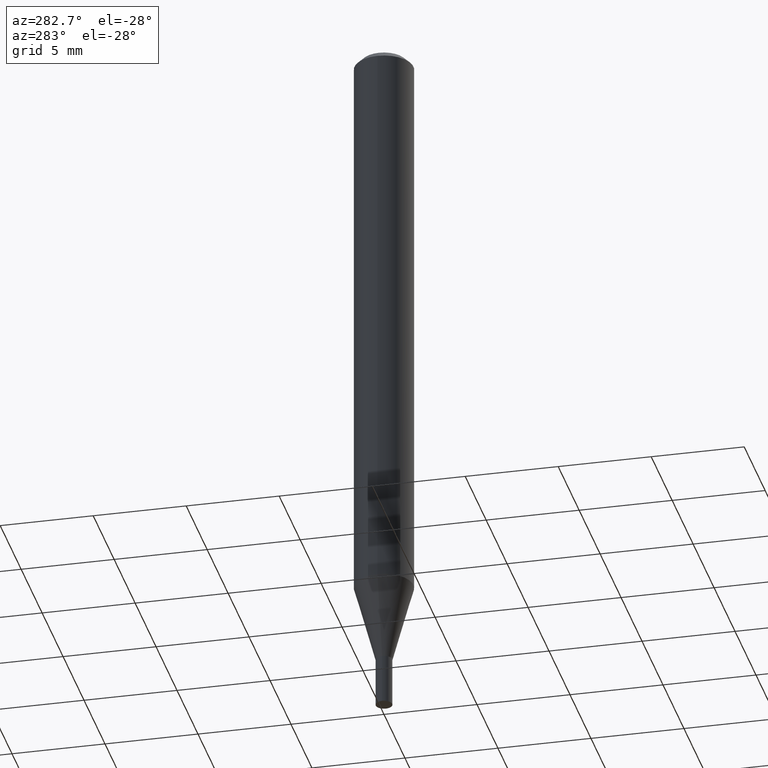
[diagram: clean part render]
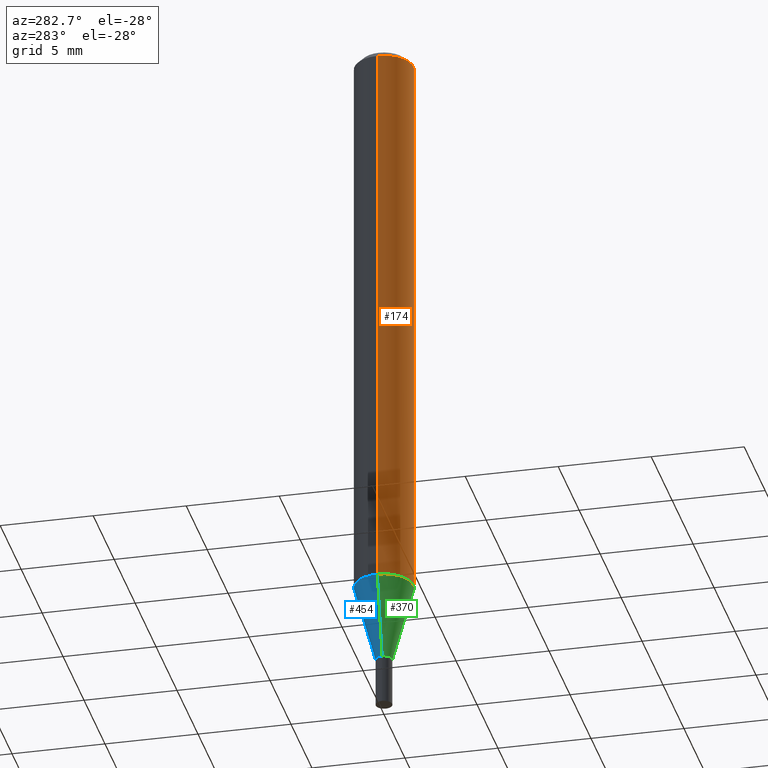
[diagram: same view with three faces highlighted in distinct colors, each labeled with its STEP entity id]
A machine part, auxiliary view with three faces highlighted in distinct colors.
Their STEP definitions:

[orange] entity #174 — the highlighted cylindrical surface (edge-blend (fillet) strip) has radius 1.5875 mm, axis along (-0, 0, 1).
#1 = VECTOR ( 'NONE', #131, 39.37007874015748143 ) ;
#6 = EDGE_CURVE ( 'NONE', #242, #431, #196, .T. ) ;
#8 = VECTOR ( 'NONE', #105, 39.37007874015748143 ) ;
#64 = CARTESIAN_POINT ( 'NONE',  ( 3.000731362142915866E-29, -4.284249108925330363E-15, -1.227057713659399862 ) ) ;
#66 = CARTESIAN_POINT ( 'NONE',  ( 0.06250000000000000000, -4.364351673553916694E-16, 3.047610484872459871E-30 ) ) ;
#71 = DIRECTION ( 'NONE',  ( -2.445468806185136597E-29, 3.491481338843145583E-15, 1.000000000000000000 ) ) ;
#89 = ORIENTED_EDGE ( 'NONE', *, *, #327, .F. ) ;
#101 = CARTESIAN_POINT ( 'NONE',  ( 0.000000000000000000, 0.000000000000000000, 0.000000000000000000 ) ) ;
#105 = DIRECTION ( 'NONE',  ( -2.445468806185136877E-29, 3.491481338843145188E-15, 1.000000000000000000 ) ) ;
#130 = DIRECTION ( 'NONE',  ( 1.000000000000000000, -6.982962677686262766E-15, 0.000000000000000000 ) ) ;
#131 = DIRECTION ( 'NONE',  ( -2.445468806185136877E-29, 3.491481338843145188E-15, 1.000000000000000000 ) ) ;
#132 = DIRECTION ( 'NONE',  ( 1.000000000000000000, -6.982962677686266711E-15, 0.000000000000000000 ) ) ;
#137 = ORIENTED_EDGE ( 'NONE', *, *, #426, .F. ) ;
#157 = EDGE_CURVE ( 'NONE', #383, #242, #450, .T. ) ;
#164 = DIRECTION ( 'NONE',  ( -2.445468806185136597E-29, 3.491481338843145583E-15, 1.000000000000000000 ) ) ;
#167 = CARTESIAN_POINT ( 'NONE',  ( 0.06250000000000000000, -4.888073874380388472E-16, -0.01499999999999999944 ) ) ;
#173 = ORIENTED_EDGE ( 'NONE', *, *, #6, .T. ) ;
#174 = ADVANCED_FACE ( 'NONE', ( #429 ), #357, .T. ) ;
#196 = LINE ( 'NONE', #66, #1 ) ;
#210 = DIRECTION ( 'NONE',  ( 1.000000000000000000, -6.982962677686266711E-15, 4.876176775795935793E-29 ) ) ;
#221 = AXIS2_PLACEMENT_3D ( 'NONE', #240, #422, #132 ) ;
#226 = CARTESIAN_POINT ( 'NONE',  ( -0.06250000000000000000, 4.440892098500626162E-16, -3.074334431409316114E-30 ) ) ;
#240 = CARTESIAN_POINT ( 'NONE',  ( 3.668203209277705088E-31, -5.237222008264718399E-17, -0.01499999999999999944 ) ) ;
#242 = VERTEX_POINT ( 'NONE', #311 ) ;
#264 = CARTESIAN_POINT ( 'NONE',  ( -0.06250000000000000000, -1.724221454653926105E-15, -0.01499999999999999944 ) ) ;
#306 = AXIS2_PLACEMENT_3D ( 'NONE', #64, #164, #130 ) ;
#311 = CARTESIAN_POINT ( 'NONE',  ( 0.06249999999999999306, -4.720684276280722821E-15, -1.227057713659399862 ) ) ;
#313 = VERTEX_POINT ( 'NONE', #264 ) ;
#327 = EDGE_CURVE ( 'NONE', #383, #313, #408, .T. ) ;
#341 = EDGE_LOOP ( 'NONE', ( #89, #392, #173, #137 ) ) ;
#357 = CYLINDRICAL_SURFACE ( 'NONE', #358, 0.06250000000000000000 ) ;
#358 = AXIS2_PLACEMENT_3D ( 'NONE', #101, #71, #210 ) ;
#363 = CARTESIAN_POINT ( 'NONE',  ( -0.06249999999999999306, -3.840159899075268536E-15, -1.227057713659399862 ) ) ;
#383 = VERTEX_POINT ( 'NONE', #363 ) ;
#392 = ORIENTED_EDGE ( 'NONE', *, *, #157, .T. ) ;
#408 = LINE ( 'NONE', #226, #8 ) ;
#422 = DIRECTION ( 'NONE',  ( -2.445468806185136597E-29, 3.491481338843145583E-15, 1.000000000000000000 ) ) ;
#426 = EDGE_CURVE ( 'NONE', #313, #431, #446, .T. ) ;
#429 = FACE_OUTER_BOUND ( 'NONE', #341, .T. ) ;
#431 = VERTEX_POINT ( 'NONE', #167 ) ;
#446 = CIRCLE ( 'NONE', #221, 0.06250000000000000000 ) ;
#450 = CIRCLE ( 'NONE', #306, 0.06250000000000000000 ) ;

[blue] entity #454 — the highlighted conical surface has half-angle 15 deg.
#40 = AXIS2_PLACEMENT_3D ( 'NONE', #440, #342, #82 ) ;
#42 = VECTOR ( 'NONE', #285, 39.37007874015748143 ) ;
#43 = VERTEX_POINT ( 'NONE', #179 ) ;
#62 = ORIENTED_EDGE ( 'NONE', *, *, #280, .F. ) ;
#69 = AXIS2_PLACEMENT_3D ( 'NONE', #144, #288, #78 ) ;
#78 = DIRECTION ( 'NONE',  ( 1.000000000000000000, -6.982962677686276177E-15, 0.000000000000000000 ) ) ;
#82 = DIRECTION ( 'NONE',  ( 1.000000000000000000, -6.982962677686262766E-15, 0.000000000000000000 ) ) ;
#115 = CIRCLE ( 'NONE', #69, 0.01749999999999965472 ) ;
#124 = FACE_OUTER_BOUND ( 'NONE', #456, .T. ) ;
#144 = CARTESIAN_POINT ( 'NONE',  ( 3.411428984628265351E-29, -4.870616467686188228E-15, -1.395000000000000018 ) ) ;
#147 = LINE ( 'NONE', #152, #42 ) ;
#152 = CARTESIAN_POINT ( 'NONE',  ( -0.01749999999999965472, -4.746271488928174135E-15, -1.395000000000000018 ) ) ;
#179 = CARTESIAN_POINT ( 'NONE',  ( -0.01749999999999965472, -4.293215694001720941E-15, -1.395000000000000018 ) ) ;
#185 = ORIENTED_EDGE ( 'NONE', *, *, #366, .T. ) ;
#192 = CARTESIAN_POINT ( 'NONE',  ( 0.01749999999999965472, -4.992818314545695844E-15, -1.395000000000000018 ) ) ;
#220 = ORIENTED_EDGE ( 'NONE', *, *, #352, .F. ) ;
#229 = CARTESIAN_POINT ( 'NONE',  ( 0.01749999999999965472, -4.992818314545695844E-15, -1.395000000000000018 ) ) ;
#234 = DIRECTION ( 'NONE',  ( 1.000000000000000000, -6.982962677686276177E-15, 0.000000000000000000 ) ) ;
#242 = VERTEX_POINT ( 'NONE', #311 ) ;
#280 = EDGE_CURVE ( 'NONE', #324, #242, #447, .T. ) ;
#281 = VECTOR ( 'NONE', #336, 39.37007874015748143 ) ;
#285 = DIRECTION ( 'NONE',  ( -0.2588190451025215166, 5.211531920934551042E-15, 0.9659258262890679791 ) ) ;
#288 = DIRECTION ( 'NONE',  ( -2.445468806185136597E-29, 3.491481338843145583E-15, 1.000000000000000000 ) ) ;
#296 = EDGE_CURVE ( 'NONE', #43, #383, #147, .T. ) ;
#309 = DIRECTION ( 'NONE',  ( -2.445468806185136597E-29, 3.491481338843145583E-15, 1.000000000000000000 ) ) ;
#311 = CARTESIAN_POINT ( 'NONE',  ( 0.06249999999999999306, -4.720684276280722821E-15, -1.227057713659399862 ) ) ;
#315 = CARTESIAN_POINT ( 'NONE',  ( 3.411428984628265351E-29, -4.870616467686188228E-15, -1.395000000000000018 ) ) ;
#318 = ORIENTED_EDGE ( 'NONE', *, *, #296, .T. ) ;
#324 = VERTEX_POINT ( 'NONE', #192 ) ;
#336 = DIRECTION ( 'NONE',  ( 0.2588190451025215166, 1.565188264969620784E-15, 0.9659258262890679791 ) ) ;
#342 = DIRECTION ( 'NONE',  ( -2.445468806185136597E-29, 3.491481338843145583E-15, 1.000000000000000000 ) ) ;
#348 = AXIS2_PLACEMENT_3D ( 'NONE', #315, #309, #234 ) ;
#352 = EDGE_CURVE ( 'NONE', #242, #383, #365, .T. ) ;
#363 = CARTESIAN_POINT ( 'NONE',  ( -0.06249999999999999306, -3.840159899075268536E-15, -1.227057713659399862 ) ) ;
#365 = CIRCLE ( 'NONE', #40, 0.06250000000000000000 ) ;
#366 = EDGE_CURVE ( 'NONE', #324, #43, #115, .T. ) ;
#383 = VERTEX_POINT ( 'NONE', #363 ) ;
#406 = CONICAL_SURFACE ( 'NONE', #348, 0.01749999999999965472, 0.2617993877991502405 ) ;
#440 = CARTESIAN_POINT ( 'NONE',  ( 3.000731362142915866E-29, -4.284249108925330363E-15, -1.227057713659399862 ) ) ;
#447 = LINE ( 'NONE', #229, #281 ) ;
#454 = ADVANCED_FACE ( 'NONE', ( #124 ), #406, .T. ) ;
#456 = EDGE_LOOP ( 'NONE', ( #185, #318, #220, #62 ) ) ;

[green] entity #370 — the highlighted conical surface has half-angle 15 deg.
#36 = CONICAL_SURFACE ( 'NONE', #384, 0.01749999999999965472, 0.2617993877991502405 ) ;
#42 = VECTOR ( 'NONE', #285, 39.37007874015748143 ) ;
#43 = VERTEX_POINT ( 'NONE', #179 ) ;
#49 = DIRECTION ( 'NONE',  ( -2.445468806185136597E-29, 3.491481338843145583E-15, 1.000000000000000000 ) ) ;
#64 = CARTESIAN_POINT ( 'NONE',  ( 3.000731362142915866E-29, -4.284249108925330363E-15, -1.227057713659399862 ) ) ;
#65 = ORIENTED_EDGE ( 'NONE', *, *, #296, .F. ) ;
#108 = CARTESIAN_POINT ( 'NONE',  ( 3.411428984628265351E-29, -4.870616467686188228E-15, -1.395000000000000018 ) ) ;
#109 = ORIENTED_EDGE ( 'NONE', *, *, #245, .T. ) ;
#130 = DIRECTION ( 'NONE',  ( 1.000000000000000000, -6.982962677686262766E-15, 0.000000000000000000 ) ) ;
#147 = LINE ( 'NONE', #152, #42 ) ;
#152 = CARTESIAN_POINT ( 'NONE',  ( -0.01749999999999965472, -4.746271488928174135E-15, -1.395000000000000018 ) ) ;
#157 = EDGE_CURVE ( 'NONE', #383, #242, #450, .T. ) ;
#164 = DIRECTION ( 'NONE',  ( -2.445468806185136597E-29, 3.491481338843145583E-15, 1.000000000000000000 ) ) ;
#179 = CARTESIAN_POINT ( 'NONE',  ( -0.01749999999999965472, -4.293215694001720941E-15, -1.395000000000000018 ) ) ;
#192 = CARTESIAN_POINT ( 'NONE',  ( 0.01749999999999965472, -4.992818314545695844E-15, -1.395000000000000018 ) ) ;
#229 = CARTESIAN_POINT ( 'NONE',  ( 0.01749999999999965472, -4.992818314545695844E-15, -1.395000000000000018 ) ) ;
#232 = CIRCLE ( 'NONE', #278, 0.01749999999999965472 ) ;
#242 = VERTEX_POINT ( 'NONE', #311 ) ;
#245 = EDGE_CURVE ( 'NONE', #43, #324, #232, .T. ) ;
#256 = DIRECTION ( 'NONE',  ( -2.445468806185136597E-29, 3.491481338843145583E-15, 1.000000000000000000 ) ) ;
#257 = EDGE_LOOP ( 'NONE', ( #65, #109, #349, #435 ) ) ;
#278 = AXIS2_PLACEMENT_3D ( 'NONE', #443, #49, #466 ) ;
#280 = EDGE_CURVE ( 'NONE', #324, #242, #447, .T. ) ;
#281 = VECTOR ( 'NONE', #336, 39.37007874015748143 ) ;
#285 = DIRECTION ( 'NONE',  ( -0.2588190451025215166, 5.211531920934551042E-15, 0.9659258262890679791 ) ) ;
#296 = EDGE_CURVE ( 'NONE', #43, #383, #147, .T. ) ;
#306 = AXIS2_PLACEMENT_3D ( 'NONE', #64, #164, #130 ) ;
#311 = CARTESIAN_POINT ( 'NONE',  ( 0.06249999999999999306, -4.720684276280722821E-15, -1.227057713659399862 ) ) ;
#324 = VERTEX_POINT ( 'NONE', #192 ) ;
#336 = DIRECTION ( 'NONE',  ( 0.2588190451025215166, 1.565188264969620784E-15, 0.9659258262890679791 ) ) ;
#349 = ORIENTED_EDGE ( 'NONE', *, *, #280, .T. ) ;
#363 = CARTESIAN_POINT ( 'NONE',  ( -0.06249999999999999306, -3.840159899075268536E-15, -1.227057713659399862 ) ) ;
#370 = ADVANCED_FACE ( 'NONE', ( #436 ), #36, .T. ) ;
#372 = DIRECTION ( 'NONE',  ( 1.000000000000000000, -6.982962677686276177E-15, 0.000000000000000000 ) ) ;
#383 = VERTEX_POINT ( 'NONE', #363 ) ;
#384 = AXIS2_PLACEMENT_3D ( 'NONE', #108, #256, #372 ) ;
#435 = ORIENTED_EDGE ( 'NONE', *, *, #157, .F. ) ;
#436 = FACE_OUTER_BOUND ( 'NONE', #257, .T. ) ;
#443 = CARTESIAN_POINT ( 'NONE',  ( 3.411428984628265351E-29, -4.870616467686188228E-15, -1.395000000000000018 ) ) ;
#447 = LINE ( 'NONE', #229, #281 ) ;
#450 = CIRCLE ( 'NONE', #306, 0.06250000000000000000 ) ;
#466 = DIRECTION ( 'NONE',  ( 1.000000000000000000, -6.982962677686276177E-15, 0.000000000000000000 ) ) ;